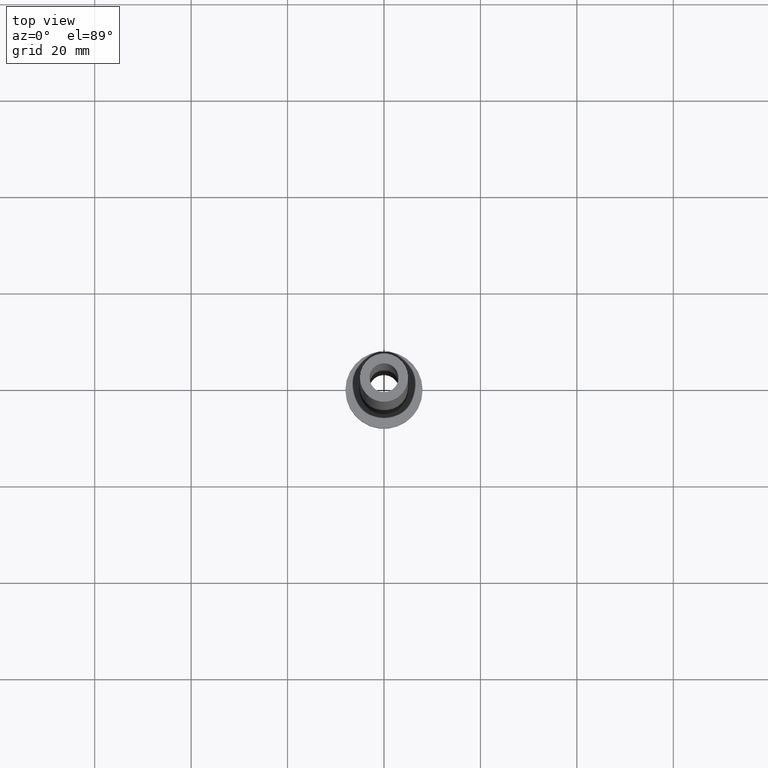
[diagram: clean part render]
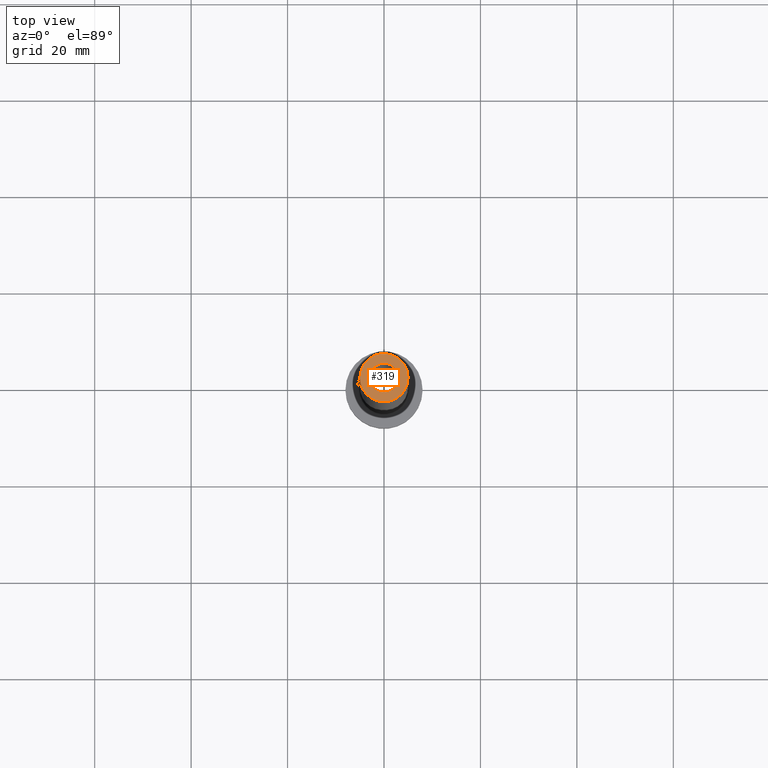
[diagram: same view with one face highlighted and labeled with its STEP entity id]
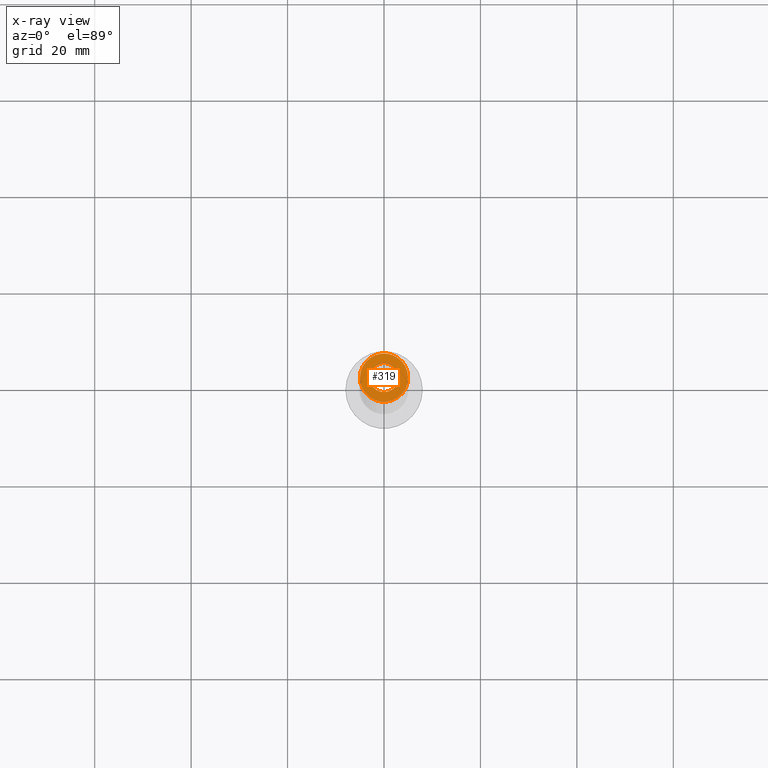
[diagram: x-ray of the same camera — body ghosted, the highlighted face saturated]
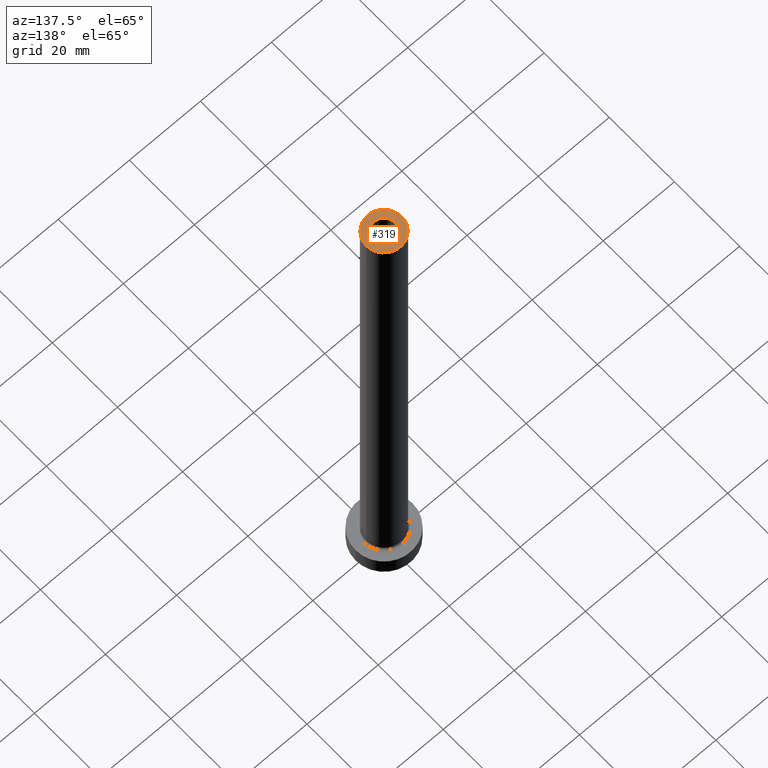
[diagram: same view with one face highlighted and labeled with its STEP entity id]
A machine part, top view. The second image highlights one B-rep face of the part: STEP entity #319.
The next image is the same camera in x-ray: the body ghosted, the highlighted face saturated — about 0% of this face is hidden behind the body in this view.
A second angle (auxiliary view) of the same face is appended — the face is thin or edge-on in the first view.
In plain terms, the highlighted planar face has unit normal (0, 0, 1).
Its self-contained STEP definition (entity closure, byte-faithful):
#18 = CARTESIAN_POINT ( 'NONE',  ( 0.000000000000000000, 0.000000000000000000, 150.0000000000000000 ) ) ;
#47 = ORIENTED_EDGE ( 'NONE', *, *, #104, .F. ) ;
#54 = ORIENTED_EDGE ( 'NONE', *, *, #245, .F. ) ;
#58 = PLANE ( 'NONE',  #304 ) ;
#59 = AXIS2_PLACEMENT_3D ( 'NONE', #399, #365, #130 ) ;
#72 = CARTESIAN_POINT ( 'NONE',  ( 3.000000000000000444, 3.673940397442059868E-16, 150.0000000000000000 ) ) ;
#74 = CARTESIAN_POINT ( 'NONE',  ( 5.000000000000000000, 6.123233995736766282E-16, 150.0000000000000000 ) ) ;
#83 = DIRECTION ( 'NONE',  ( 1.000000000000000000, 0.000000000000000000, 0.000000000000000000 ) ) ;
#85 = DIRECTION ( 'NONE',  ( 1.000000000000000000, 0.000000000000000000, -0.000000000000000000 ) ) ;
#104 = EDGE_CURVE ( 'NONE', #217, #332, #457, .T. ) ;
#130 = DIRECTION ( 'NONE',  ( 1.000000000000000000, 0.000000000000000000, 0.000000000000000000 ) ) ;
#168 = AXIS2_PLACEMENT_3D ( 'NONE', #226, #341, #302 ) ;
#198 = CARTESIAN_POINT ( 'NONE',  ( 0.000000000000000000, 0.000000000000000000, 150.0000000000000000 ) ) ;
#216 = CARTESIAN_POINT ( 'NONE',  ( 0.000000000000000000, 0.000000000000000000, 150.0000000000000000 ) ) ;
#217 = VERTEX_POINT ( 'NONE', #72 ) ;
#226 = CARTESIAN_POINT ( 'NONE',  ( 0.000000000000000000, 0.000000000000000000, 150.0000000000000000 ) ) ;
#238 = VERTEX_POINT ( 'NONE', #74 ) ;
#244 = AXIS2_PLACEMENT_3D ( 'NONE', #198, #267, #83 ) ;
#245 = EDGE_CURVE ( 'NONE', #332, #217, #413, .T. ) ;
#251 = AXIS2_PLACEMENT_3D ( 'NONE', #216, #330, #355 ) ;
#267 = DIRECTION ( 'NONE',  ( 0.000000000000000000, 0.000000000000000000, 1.000000000000000000 ) ) ;
#273 = CIRCLE ( 'NONE', #244, 5.000000000000000000 ) ;
#299 = EDGE_LOOP ( 'NONE', ( #344, #308 ) ) ;
#302 = DIRECTION ( 'NONE',  ( 1.000000000000000000, 0.000000000000000000, 0.000000000000000000 ) ) ;
#304 = AXIS2_PLACEMENT_3D ( 'NONE', #18, #411, #85 ) ;
#305 = VERTEX_POINT ( 'NONE', #441 ) ;
#308 = ORIENTED_EDGE ( 'NONE', *, *, #425, .T. ) ;
#319 = ADVANCED_FACE ( 'NONE', ( #372, #376 ), #58, .T. ) ;
#326 = CIRCLE ( 'NONE', #168, 5.000000000000000000 ) ;
#330 = DIRECTION ( 'NONE',  ( 0.000000000000000000, 0.000000000000000000, 1.000000000000000000 ) ) ;
#332 = VERTEX_POINT ( 'NONE', #377 ) ;
#341 = DIRECTION ( 'NONE',  ( 0.000000000000000000, 0.000000000000000000, 1.000000000000000000 ) ) ;
#344 = ORIENTED_EDGE ( 'NONE', *, *, #359, .T. ) ;
#355 = DIRECTION ( 'NONE',  ( 1.000000000000000000, 0.000000000000000000, 0.000000000000000000 ) ) ;
#359 = EDGE_CURVE ( 'NONE', #305, #238, #273, .T. ) ;
#365 = DIRECTION ( 'NONE',  ( 0.000000000000000000, 0.000000000000000000, 1.000000000000000000 ) ) ;
#372 = FACE_BOUND ( 'NONE', #456, .T. ) ;
#376 = FACE_OUTER_BOUND ( 'NONE', #299, .T. ) ;
#377 = CARTESIAN_POINT ( 'NONE',  ( -3.000000000000000444, 0.000000000000000000, 150.0000000000000000 ) ) ;
#399 = CARTESIAN_POINT ( 'NONE',  ( 0.000000000000000000, 0.000000000000000000, 150.0000000000000000 ) ) ;
#411 = DIRECTION ( 'NONE',  ( 0.000000000000000000, 0.000000000000000000, 1.000000000000000000 ) ) ;
#413 = CIRCLE ( 'NONE', #251, 3.000000000000000444 ) ;
#425 = EDGE_CURVE ( 'NONE', #238, #305, #326, .T. ) ;
#441 = CARTESIAN_POINT ( 'NONE',  ( -5.000000000000000000, 0.000000000000000000, 150.0000000000000000 ) ) ;
#456 = EDGE_LOOP ( 'NONE', ( #54, #47 ) ) ;
#457 = CIRCLE ( 'NONE', #59, 3.000000000000000444 ) ;